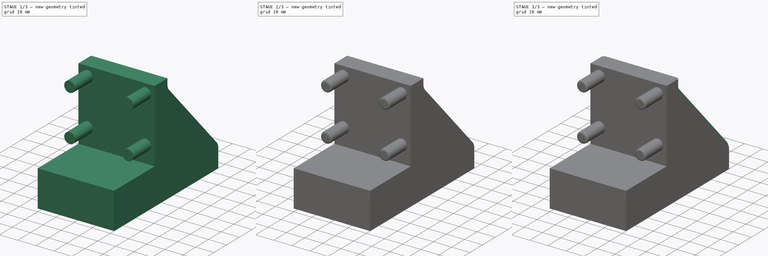
[diagram: build sequence overview — one tinted view per stage of 3, left to right]
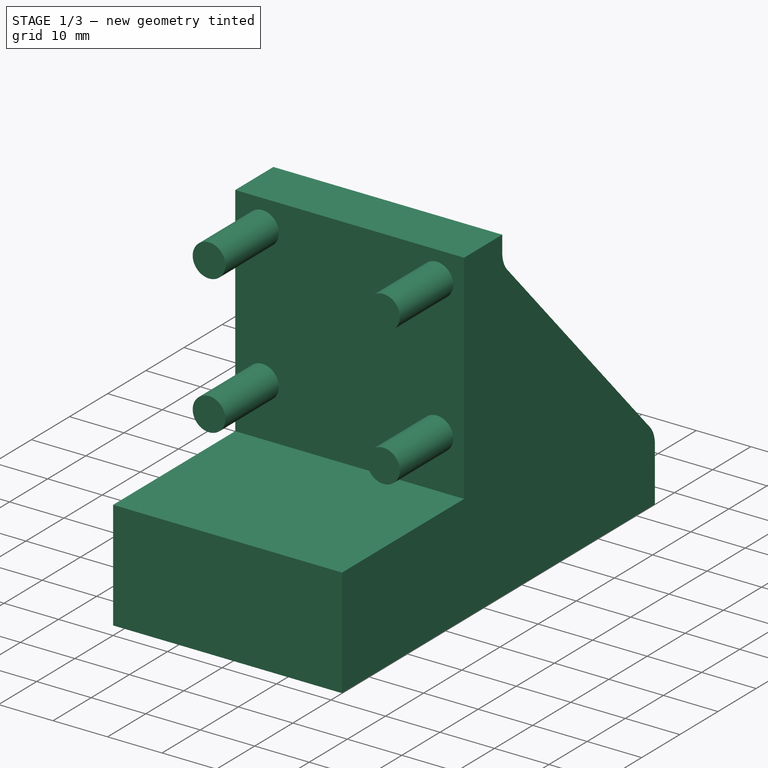
[diagram: stage 1 of 3 — iso view after this stage's code; geometry added in this stage tinted green]
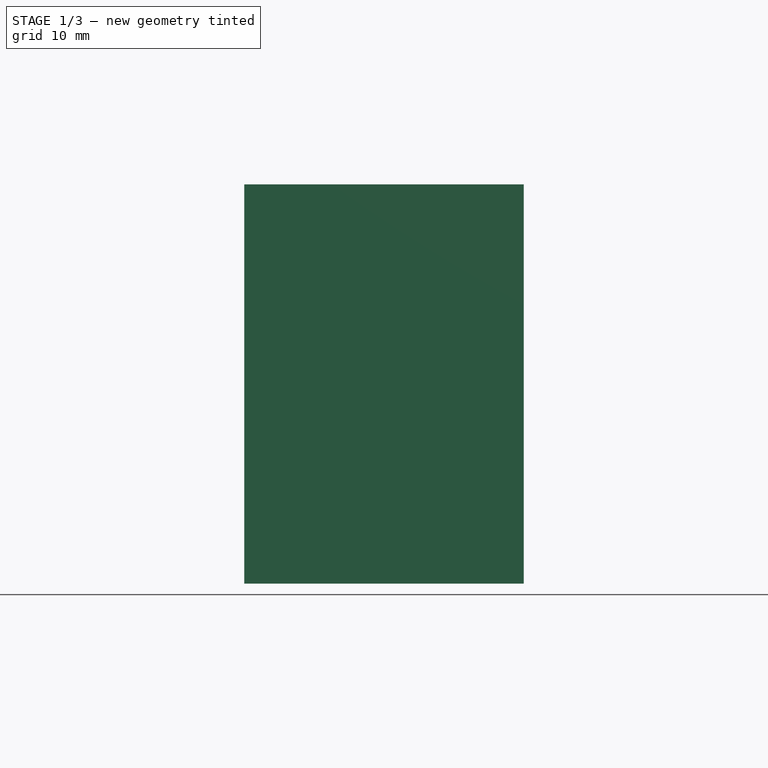
[diagram: stage 1 of 3 — front view after this stage's code; geometry added in this stage tinted green]
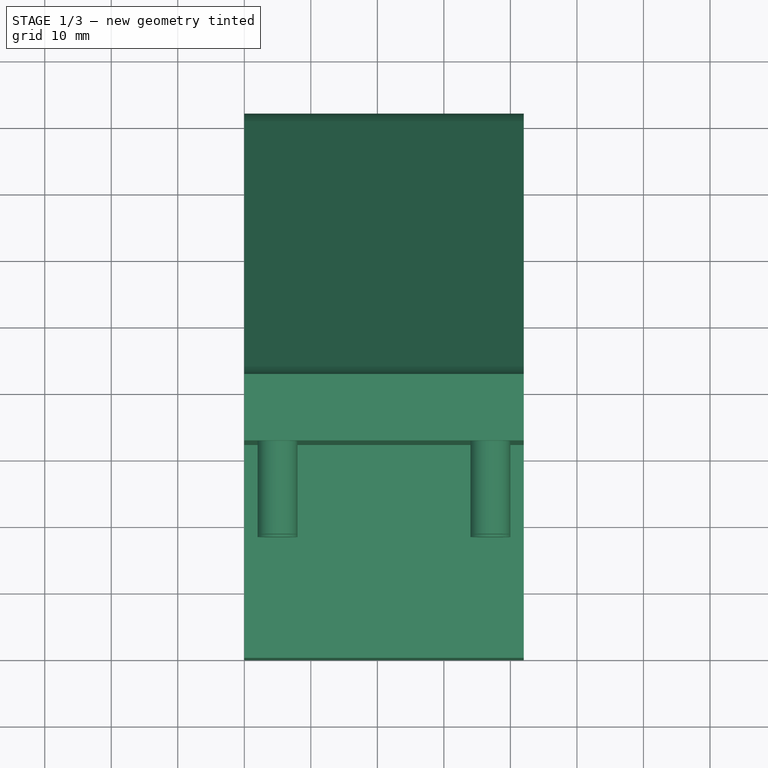
[diagram: stage 1 of 3 — top view after this stage's code; geometry added in this stage tinted green]
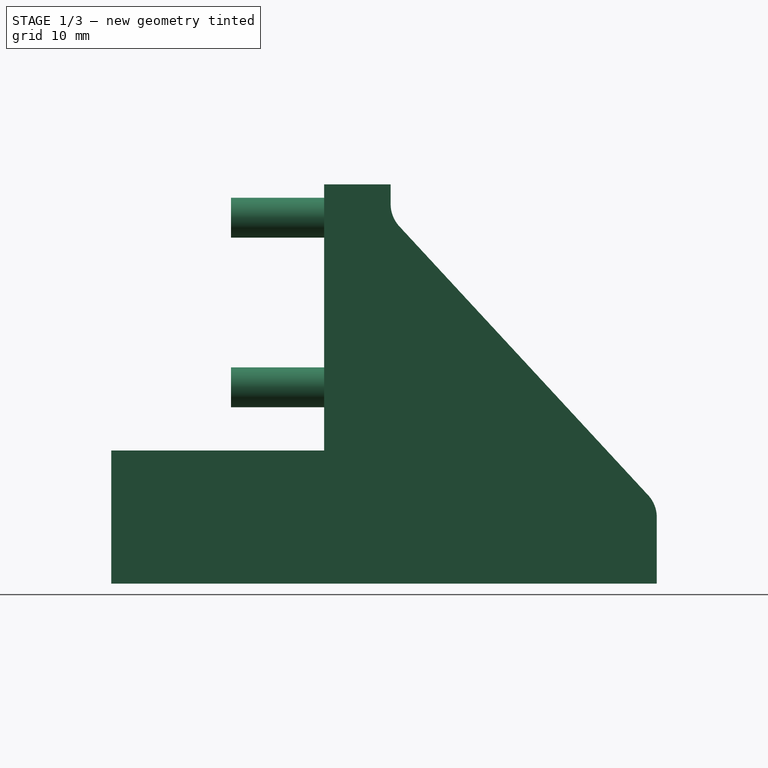
[diagram: stage 1 of 3 — right view after this stage's code; geometry added in this stage tinted green]
FCSTD DOCUMENT  (FreeCAD 1.0R39319 (Git))
Label: IKEA Ivar Wallmount
License: All rights reserved
LicenseURL: https://en.wikipedia.org/wiki/All_rights_reserved
objects: Sketcher::SketchObject×3, PartDesign::Pad×2, PartDesign::Fillet×1, PartDesign::Plane×1, PartDesign::Pocket×1, PartDesign::Hole×1, PartDesign::Chamfer×1, PartDesign::Body×1
note: 26 computed .brp shape members not serialized (recipe doc carries the construction recipe); baked Part::Feature solids carry a one-line shape summary decoded from their .brp

FEATURE [Sketcher::SketchObject] Sketch
  ArcFitTolerance = 1e-06
  AttachmentSupport = -> [YZ_Plane]
  FullyConstrained = true
  MakeInternals = false
  MapMode = 5
  Placement = pos=(0,0,0) rot=(0.57735,0.57735,0.57735;2.0944rad)
  sketch-geometry (10):
    g0: LineSegment StartX=0.0304776 StartY=0 StartZ=0 EndX=0.0304776 EndY=20 EndZ=0
    g1: LineSegment StartX=0.0304776 StartY=20 StartZ=0 EndX=32.0305 EndY=20 EndZ=0
    g2: LineSegment StartX=32.0305 StartY=20 StartZ=0 EndX=32.0305 EndY=60 EndZ=0
    g3: LineSegment StartX=32.0305 StartY=60 StartZ=0 EndX=42.0305 EndY=60 EndZ=0
    g4: LineSegment StartX=82.0305 StartY=0 StartZ=0 EndX=0.0304776 EndY=0 EndZ=0
    g5: LineSegment StartX=42.0305 StartY=60 StartZ=0 EndX=42.0305 EndY=57.04 EndZ=0
    g6: LineSegment StartX=82.0305 StartY=10 StartZ=0 EndX=82.0305 EndY=0 EndZ=0
    g7: LineSegment StartX=43.3421 StartY=53.6916 StartZ=0 EndX=80.7508 EndY=13.2669 EndZ=0
    g8: ArcOfCircle CenterX=77.2205 CenterY=10 CenterZ=0 NormalX=0 NormalY=0 NormalZ=1 AngleXU=0 Radius=4.81 StartAngle=-3.89e-13 EndAngle=0.74667
    g9: ArcOfCircle CenterX=46.9605 CenterY=57.04 CenterZ=0 NormalX=0 NormalY=0 NormalZ=1 AngleXU=0 Radius=4.93 StartAngle=3.14159 EndAngle=3.88826
  constraints (29):
    c: PointOnObject(g0,g-1)
    c: Vertical(g0)
    c: Coincident(g0,g1)
    c: Horizontal(g1)
    c: Coincident(g1,g2)
    c: Vertical(g2)
    c: Coincident(g2,g3)
    c: Horizontal(g3)
    c: PointOnObject(g4,g-1)
    c: Coincident(g4,g0)
    c: DistanceX(g4,g4) = 82
    c: DistanceY(g0,g0) = 20
    c: DistanceX(g1,g1) = 32
    c: Coincident(g3,g5)
    c: Vertical(g5)
    c: Coincident(g6,g4)
    c: Vertical(g6)
    c: Distance(g3,g3) = 10
    c: Angle(g5,g7) = 0.74667
    c: Tangent(g7,g8) = 1.5708
    c: Tangent(g6,g8) = 1.5708
    c: Tangent(g5,g9) = -1.5708
    c: Tangent(g7,g9) = -1.5708
    c: Diameter(g9) = 9.86
    c: Diameter(g8) = 9.62
    c: DistanceY(g5,g5) = 2.96
    c: DistanceY(g2,g2) = 40
    c: Block(g0)
    c: DistanceY(g6,g6) = 10
FEATURE [PartDesign::Pad] Pad
  Direction = (1,0,0)
  Length = 42
  Length2 = 10
  Placement = pos=(0,0,0) rot=(1,1,1;2.0944rad)
  Profile = -> Sketch
  ReferenceAxis = -> Sketch [N_Axis]
  Refine = true
  Suppressed = false
  Type = 0
FEATURE [Sketcher::SketchObject] Sketch001
  ArcFitTolerance = 1e-06
  AttachmentSupport = -> [Pad]
  ExternalGeometry = -> [Pad]
  FullyConstrained = true
  MakeInternals = false
  MapMode = 5
  Placement = pos=(7e-15,32.0305,0) rot=(0.57735,0.57735,-0.57735;2.0944rad)
  sketch-geometry (8):
    g0: Circle CenterX=-55 CenterY=37 CenterZ=0 NormalX=0 NormalY=0 NormalZ=1 AngleXU=0 Radius=3
    g1: Circle CenterX=-29.5 CenterY=37 CenterZ=0 NormalX=0 NormalY=0 NormalZ=1 AngleXU=0 Radius=3
    g2: Circle CenterX=-55 CenterY=5 CenterZ=0 NormalX=0 NormalY=0 NormalZ=1 AngleXU=0 Radius=3
    g3: Circle CenterX=-29.5 CenterY=5 CenterZ=0 NormalX=0 NormalY=0 NormalZ=1 AngleXU=0 Radius=3
    g4: LineSegment [constr] StartX=-60 StartY=5 StartZ=0 EndX=-20 EndY=5 EndZ=0
    g5: LineSegment [constr] StartX=-60 StartY=37 StartZ=0 EndX=-20 EndY=37 EndZ=0
    g6: LineSegment [constr] StartX=-55 StartY=42 StartZ=0 EndX=-55 EndY=-2.84e-14 EndZ=0
    g7: LineSegment [constr] StartX=-29.5 StartY=42 StartZ=0 EndX=-29.5 EndY=-1.42e-14 EndZ=0
  constraints (30):
    c: Diameter(g0) = 6
    c: Diameter(g1) = 6
    c: Diameter(g3) = 6
    c: Diameter(g2) = 6
    c: PointOnObject(g4,g-5)
    c: PointOnObject(g4,g-8)
    c: Horizontal(g4)
    c: PointOnObject(g5,g-5)
    c: PointOnObject(g5,g-8)
    c: Horizontal(g5)
    c: PointOnObject(g3,g4)
    c: PointOnObject(g0,g5)
    c: PointOnObject(g1,g5)
    c: Distance(g-6,g5) = 5
    c: Distance(g-7,g4) = 5
    c: PointOnObject(g6,g-6)
    c: PointOnObject(g6,g-7)
    c: Vertical(g6)
    c: PointOnObject(g0,g6)
    c: PointOnObject(g2,g6)
    c: PointOnObject(g7,g-6)
    c: PointOnObject(g7,g-7)
    c: Vertical(g7)
    c: PointOnObject(g1,g7)
    c: PointOnObject(g3,g7)
    c: DistanceX(g-6,g6) = 5
    c: DistanceX(g6,g7) = 25.5
    c: DistanceY(g4,g5) = 32
    c: PointOnObject(g2,g4)
    c: DistanceX(g7,g-8) = 9.5
FEATURE [PartDesign::Pad] Pad001
  BaseFeature = -> Pad
  Direction = (0,-1,0)
  Length = 14
  Length2 = 10
  Placement = pos=(0,0,0) rot=(1,1,1;2.0944rad)
  Profile = -> Sketch001
  ReferenceAxis = -> Sketch001 [N_Axis]
  Refine = true
  Suppressed = false
  Type = 0
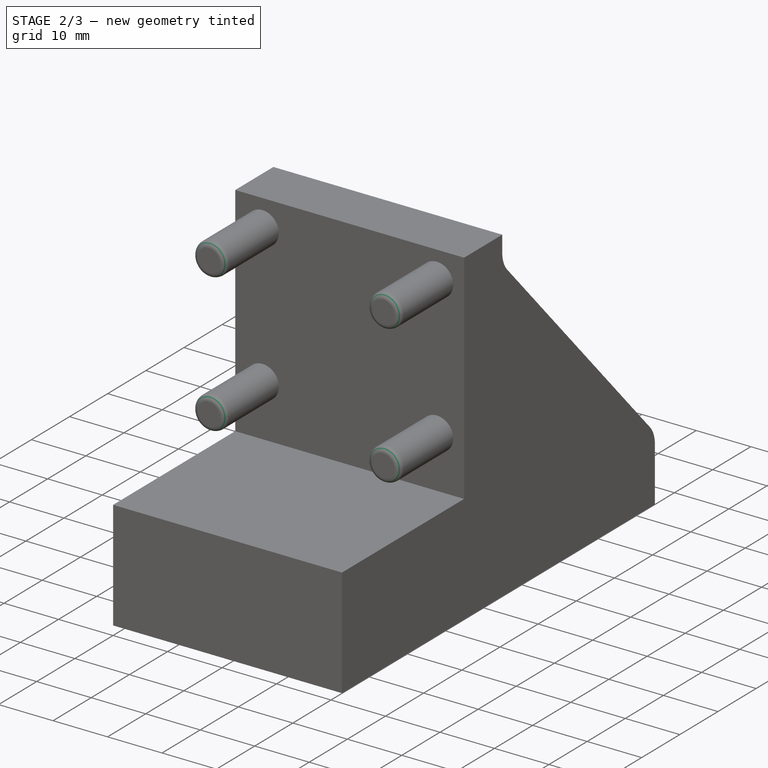
[diagram: stage 2 of 3 — iso view after this stage's code; geometry added in this stage tinted green]
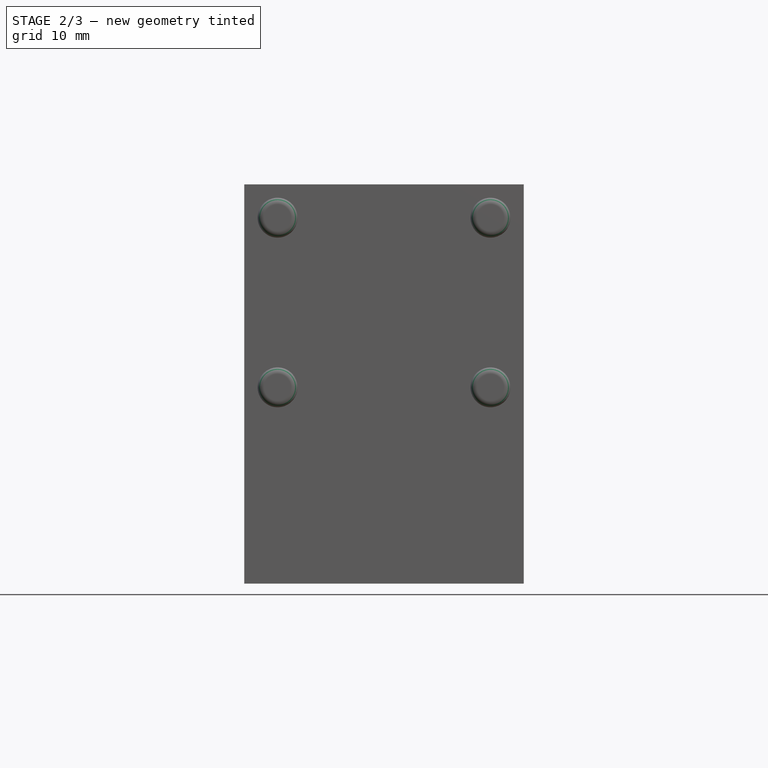
[diagram: stage 2 of 3 — front view after this stage's code; geometry added in this stage tinted green]
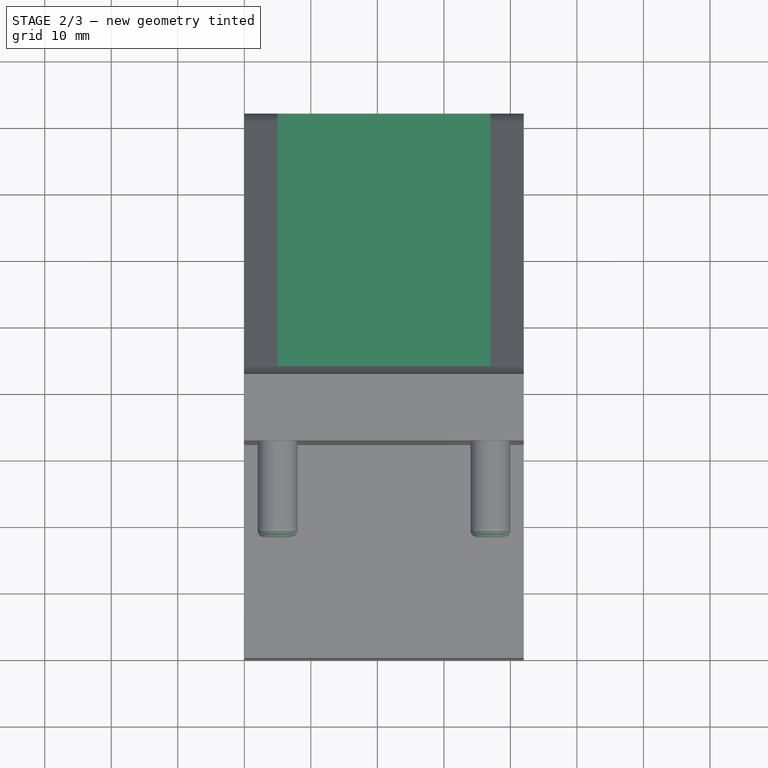
[diagram: stage 2 of 3 — top view after this stage's code; geometry added in this stage tinted green]
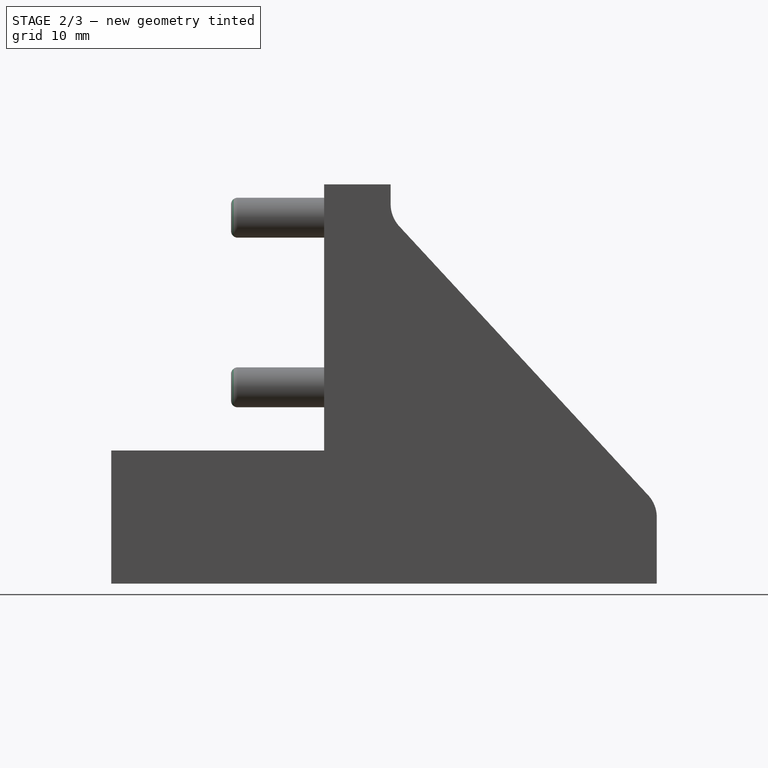
[diagram: stage 2 of 3 — right view after this stage's code; geometry added in this stage tinted green]
FEATURE [PartDesign::Fillet] Fillet
  Base = -> Pad001 [Face20,Face18,Face17,Face19]
  BaseFeature = -> Pad001
  Placement = pos=(0,0,0) rot=(1,1,1;2.0944rad)
  Radius = 1
  Refine = true
  SupportTransform = false
  Suppressed = false
  UseAllEdges = false
FEATURE [PartDesign::Plane] DatumPlane
  AttachmentOffset = pos=(0,0,10) rot=(0,0,1;0rad)
  AttachmentSupport = -> [XY_Plane]
  Length = 64.6308
  MapMode = 5
  Placement = pos=(0,0,10) rot=(0,0,1;0rad)
  ResizeMode = 0
  Width = 121.661
FEATURE [Sketcher::SketchObject] Sketch002
  ArcFitTolerance = 1e-06
  AttachmentSupport = -> [DatumPlane]
  ExternalGeometry = -> [Fillet]
  FullyConstrained = true
  MakeInternals = false
  MapMode = 5
  Placement = pos=(0,0,10) rot=(0,0,1;0rad)
  sketch-geometry (5):
    g0: LineSegment StartX=5 StartY=82.0305 StartZ=0 EndX=5 EndY=43.3421 EndZ=0
    g1: LineSegment StartX=5 StartY=43.3421 StartZ=0 EndX=37 EndY=43.3421 EndZ=0
    g2: LineSegment StartX=37 StartY=43.3421 StartZ=0 EndX=37 EndY=82.0305 EndZ=0
    g3: LineSegment StartX=37 StartY=82.0305 StartZ=0 EndX=5 EndY=82.0305 EndZ=0
    g4: Circle CenterX=21 CenterY=62.6863 CenterZ=0 NormalX=0 NormalY=0 NormalZ=1 AngleXU=0 Radius=2.5
  constraints (14):
    c: Coincident(g0,g1)
    c: Coincident(g1,g2)
    c: Coincident(g2,g3)
    c: Coincident(g3,g0)
    c: Vertical(g0)
    c: Vertical(g2)
    c: Horizontal(g1)
    c: Horizontal(g3)
    c: PointOnObject(g0,g-3)
    c: PointOnObject(g1,g-5)
    c: DistanceX(g-3,g0) = 5
    c: DistanceX(g2,g-7) = 5
    c: Diameter(g4) = 5
    c: Symmetric(g-7,g-5,g4)
FEATURE [PartDesign::Pocket] Pocket
  BaseFeature = -> Fillet
  Direction = (0,0,-1)
  Length = 5
  Length2 = 5
  Placement = pos=(0,0,0) rot=(1,1,1;2.0944rad)
  Profile = -> Sketch002 [Edge2,Edge3,Edge4,Edge1]
  ReferenceAxis = -> Sketch002 [N_Axis]
  Refine = true
  Reversed = true
  Suppressed = false
  Type = 1
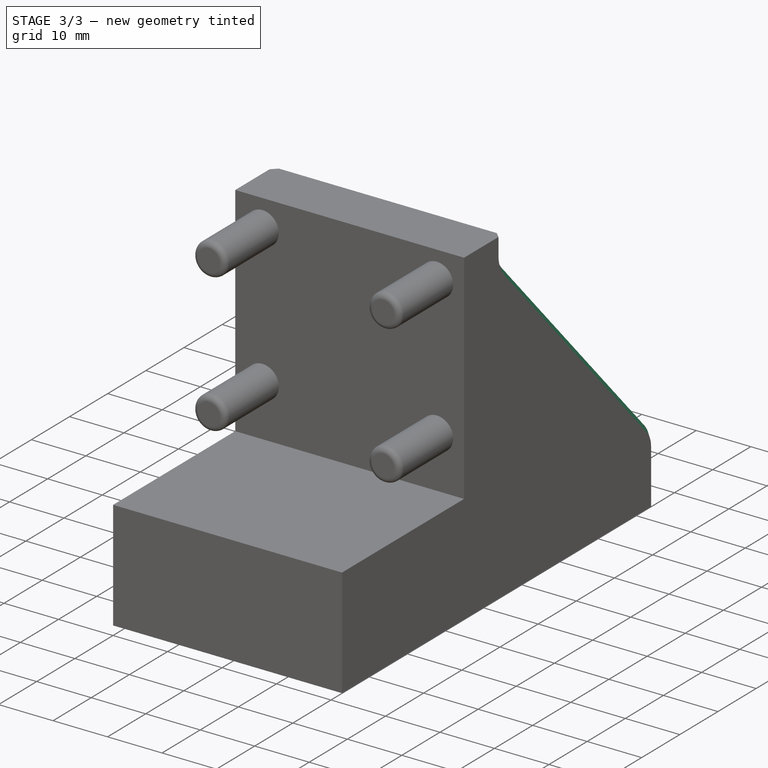
[diagram: stage 3 of 3 — iso view after this stage's code; geometry added in this stage tinted green]
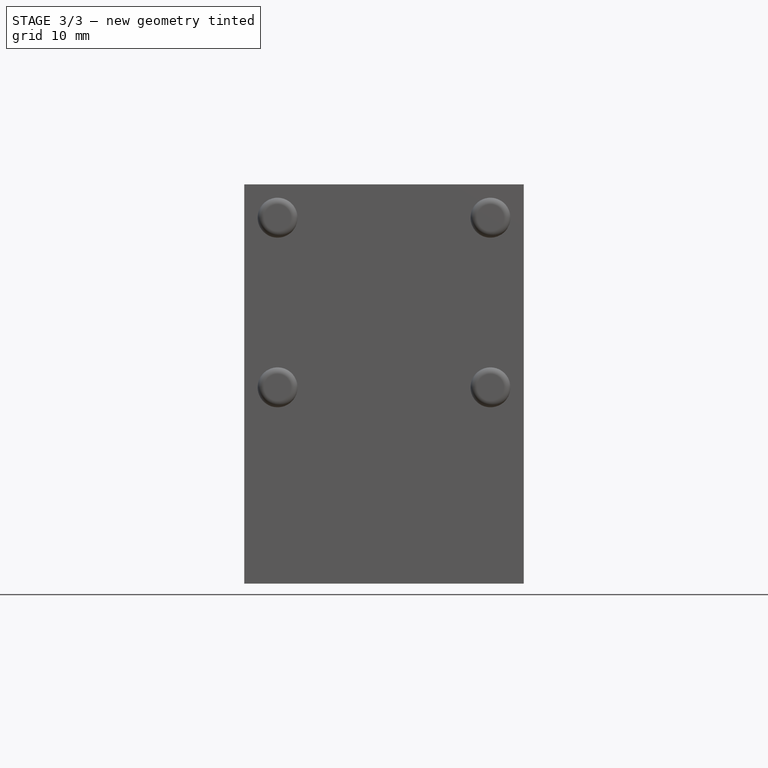
[diagram: stage 3 of 3 — front view after this stage's code; geometry added in this stage tinted green]
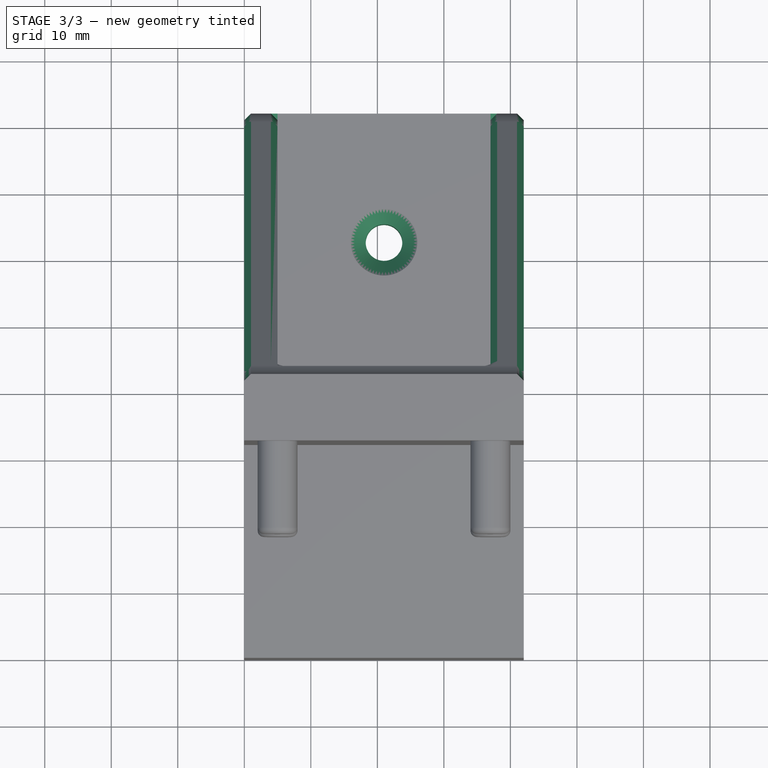
[diagram: stage 3 of 3 — top view after this stage's code; geometry added in this stage tinted green]
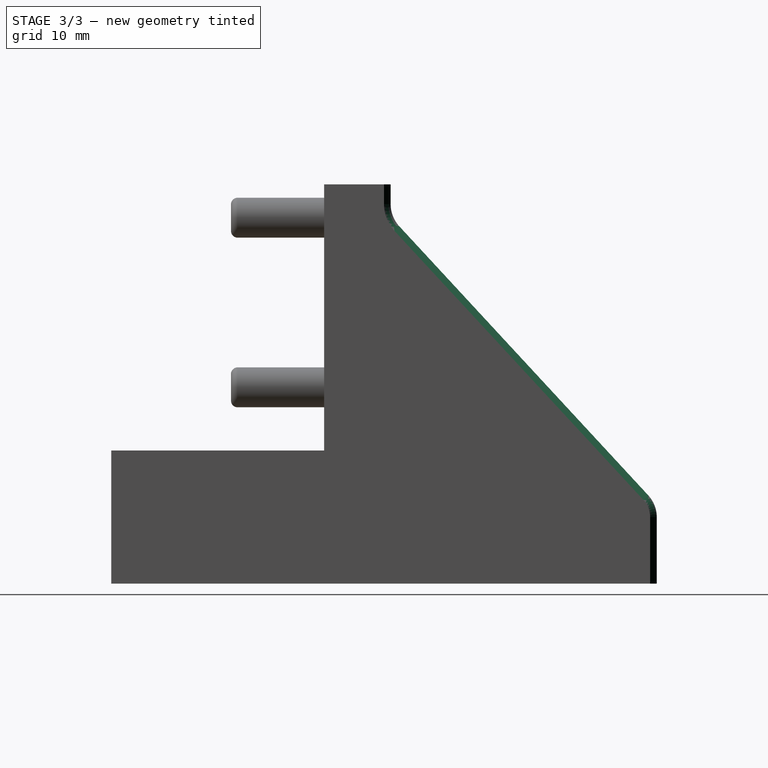
[diagram: stage 3 of 3 — right view after this stage's code; geometry added in this stage tinted green]
FEATURE [PartDesign::Hole] Hole
  BaseFeature = -> Pocket
  CustomThreadClearance = 0
  Depth = 239.768
  DepthType = 1
  Diameter = 5.5
  DrillForDepth = false
  DrillPoint = 1
  DrillPointAngle = 118
  HoleCutCountersinkAngle = 90
  HoleCutCustomValues = false
  HoleCutDepth = 0
  HoleCutDiameter = 10
  HoleCutType = 2
  ModelThread = false
  Placement = pos=(0,0,0) rot=(1,1,1;2.0944rad)
  Profile = -> Sketch002 [Edge5]
  Refine = true
  Suppressed = false
  Tapered = false
  TaperedAngle = 90
  ThreadClass = 0
  ThreadDepth = 239.768
  ThreadDepthType = 0
  ThreadDirection = 0
  ThreadFit = 0
  ThreadSize = 13
  ThreadType = 1
  Threaded = false
  UseCustomThreadClearance = false
FEATURE [PartDesign::Chamfer] Chamfer
  Angle = 45
  Base = -> Hole [Face15,Face19,Face16,Face20]
  BaseFeature = -> Hole
  ChamferType = 0
  FlipDirection = false
  Placement = pos=(0,0,0) rot=(1,1,1;2.0944rad)
  Refine = true
  Size = 1
  Size2 = 1
  SupportTransform = false
  Suppressed = false
  UseAllEdges = false
FEATURE [PartDesign::Body] Body
  AllowCompound = false
  Group = -> [Sketch,Pad,Sketch001,Pad001,Fillet,DatumPlane,Sketch002,Pocket,Hole,Chamfer]
  Origin = -> Origin
  Tip = -> Chamfer
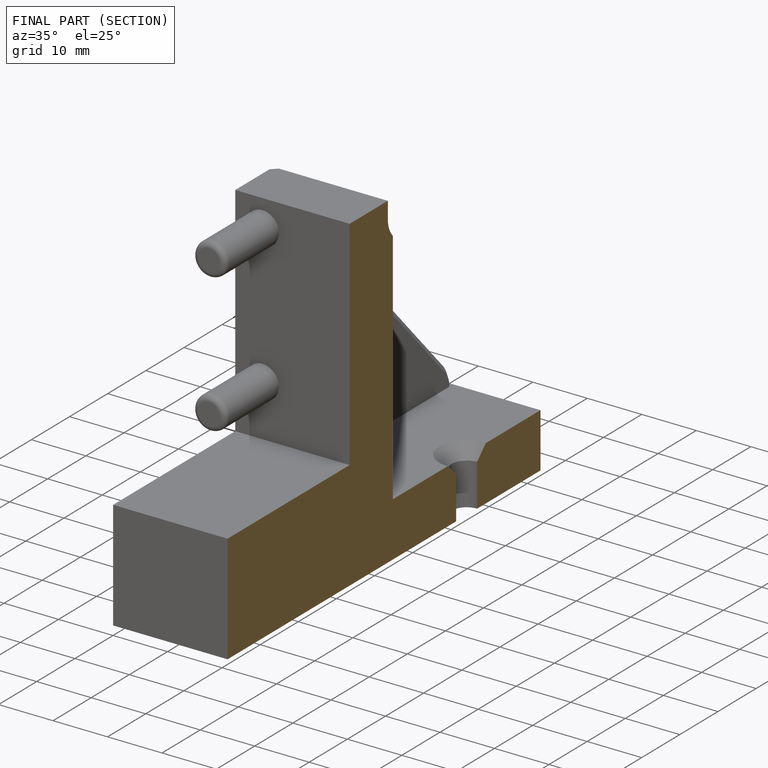
[diagram: finished part — half-section view (interior)]
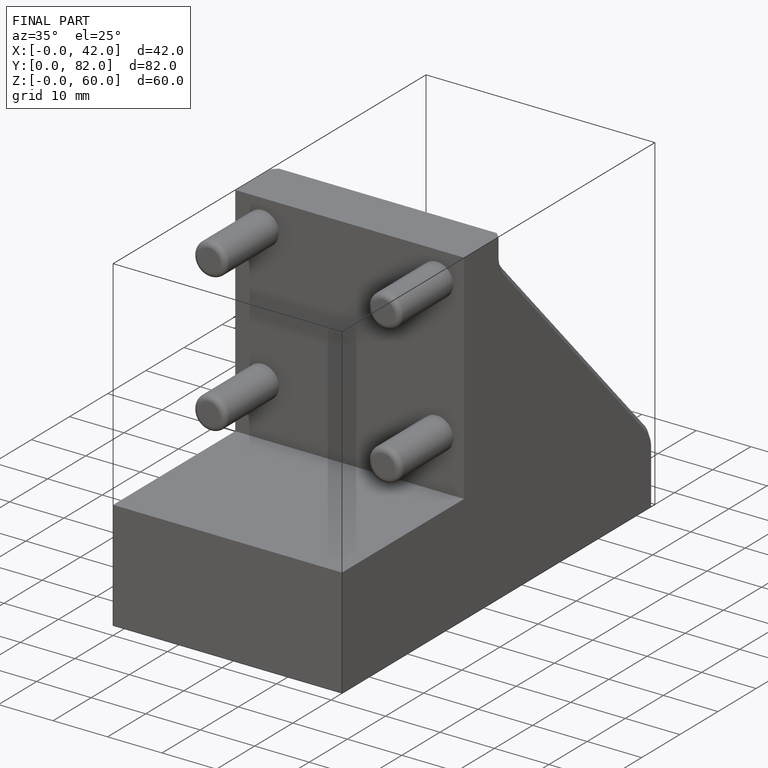
[diagram: finished part — iso view with bounding-box wireframe]
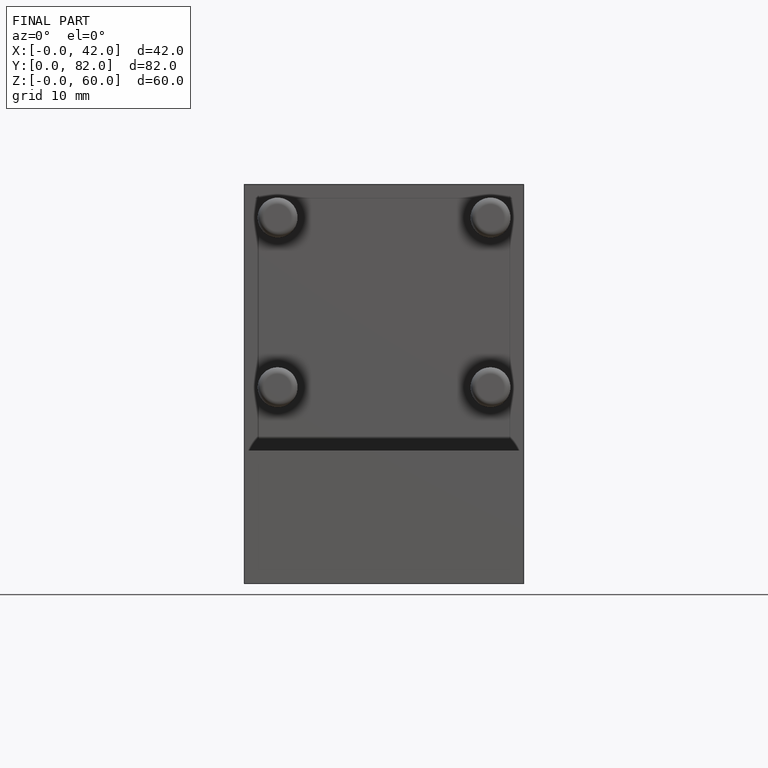
[diagram: finished part — front view with bounding-box wireframe]
